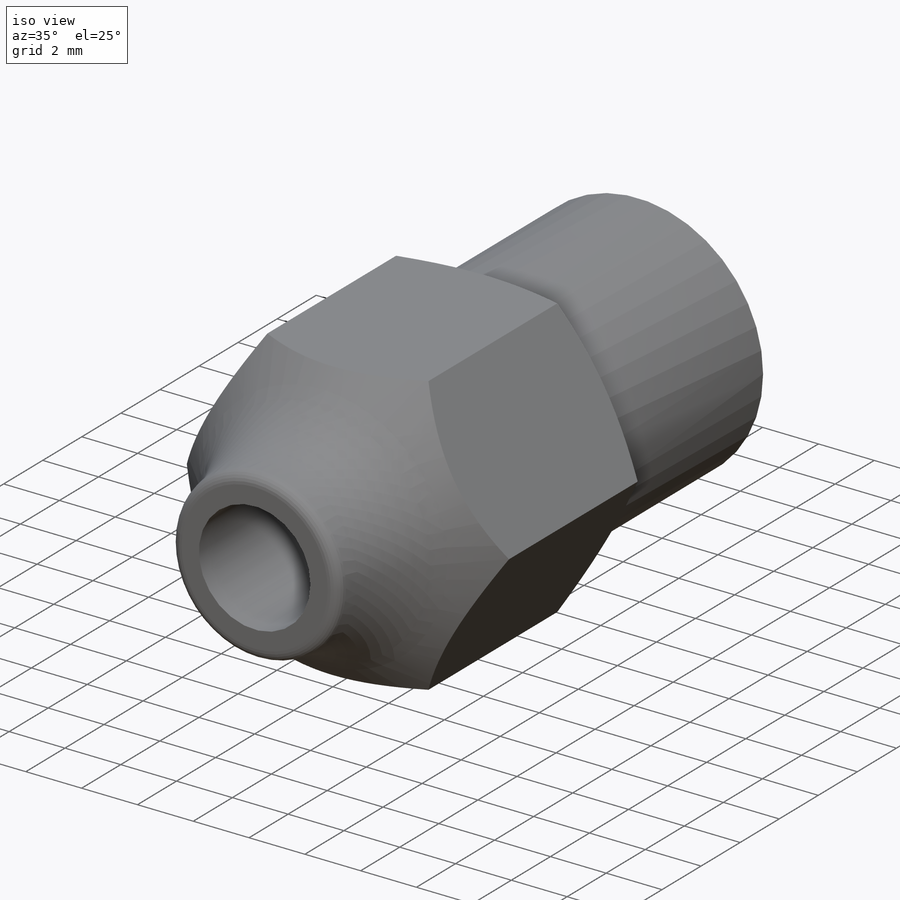
[diagram: iso view]
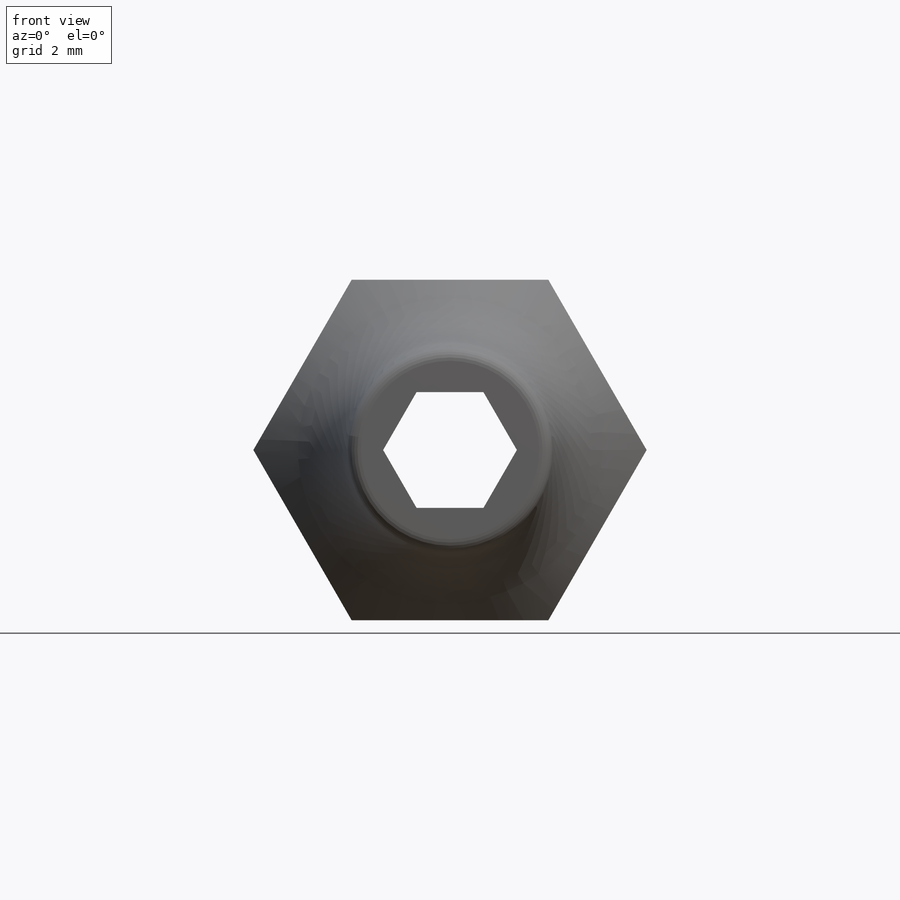
[diagram: front view]
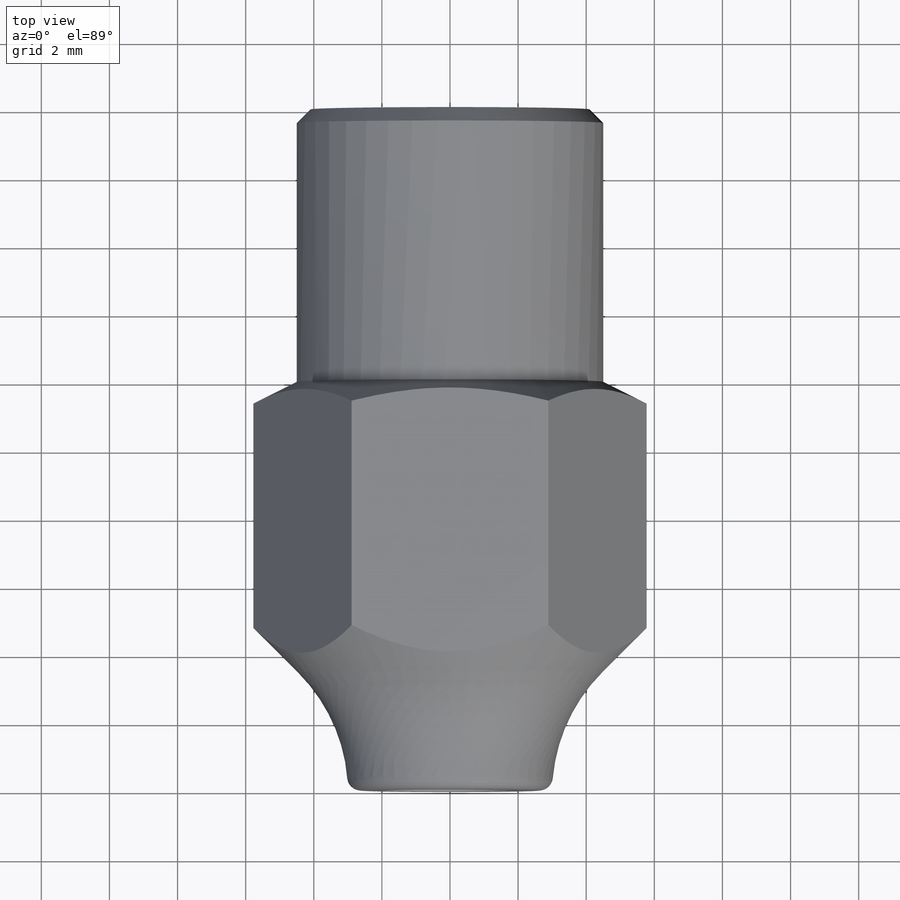
[diagram: top view]
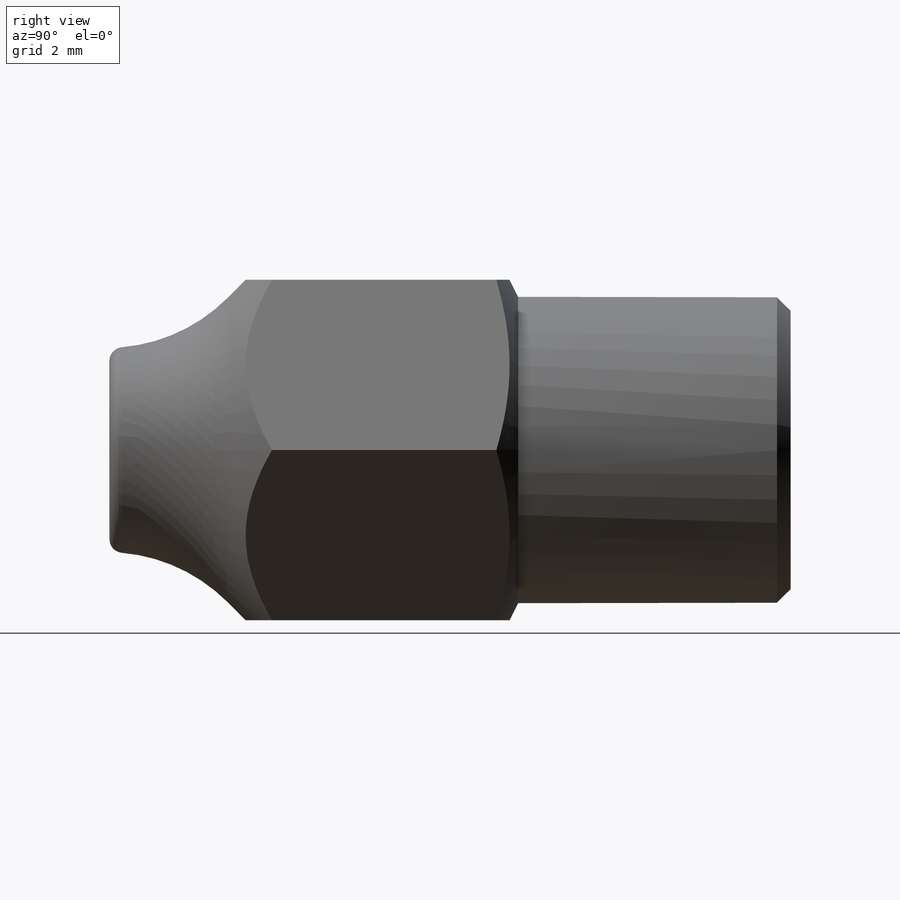
[diagram: right view]
SOLIDWORKS PART (.sldprt)
format: sldprt  version: not decoded by parser v0  size: 259,584 bytes
history: native  units: mm
features: sketch x7, extrude x5, plane x3, chamfer x3, fillet x2, cut_extrude x2, material x1 (+8 scaffold rows collapsed)
feature tree (31):
  scaffold x8  (default folders/planes/origin — collapsed)
  material  "Matériau <non spécifié>"
  plane  "Plan de face"
  plane  "Plan de dessus"
  plane  "Plan de droite"
  sketch  "Esquisse1"  dims[D1=9.0mm]
  extrude  "Boss.-Extru.1"  Depth=1mm
  sketch  "Esquisse2"  dims[D1=10.0mm]
  extrude  "Boss.-Extru.2"  Depth=6mm
  chamfer  "Chanfrein2"  Distance=1mm
  sketch  "Esquisse3"
  extrude  "Boss.-Extru.3"  Depth=8mm
  chamfer  "Chanfrein3"  Distance=0.4mm Angle=45deg
  sketch  "Esquisse4"  dims[D1=6.0mm]
  extrude  "Boss.-Extru.4"  Depth=3mm
  chamfer  "Chanfrein4"  Distance=3mm Angle=45deg
  sketch  "Esquisse7"
  extrude  "Boss.-Extru.5"  Depth=2mm
  fillet  "Congé2"  Radius=5mm
  fillet  "Congé3"  Radius=0.4mm
  sketch  "Esquisse8"  dims[D1=4.0mm]
  cut_extrude  "Enlèv. mat.-Extru.3"  Depth=10mm
  sketch  "Esquisse9"  dims[D1=3.4mm]
  cut_extrude  "Enlèv. mat.-Extru.4"  [1 undecoded]
decode coverage: 16 of 19 modeling features carry decoded parameters
note: 1 parameter value undecoded
note: suppression state not decoded; provenance and decode notes live in map.json
